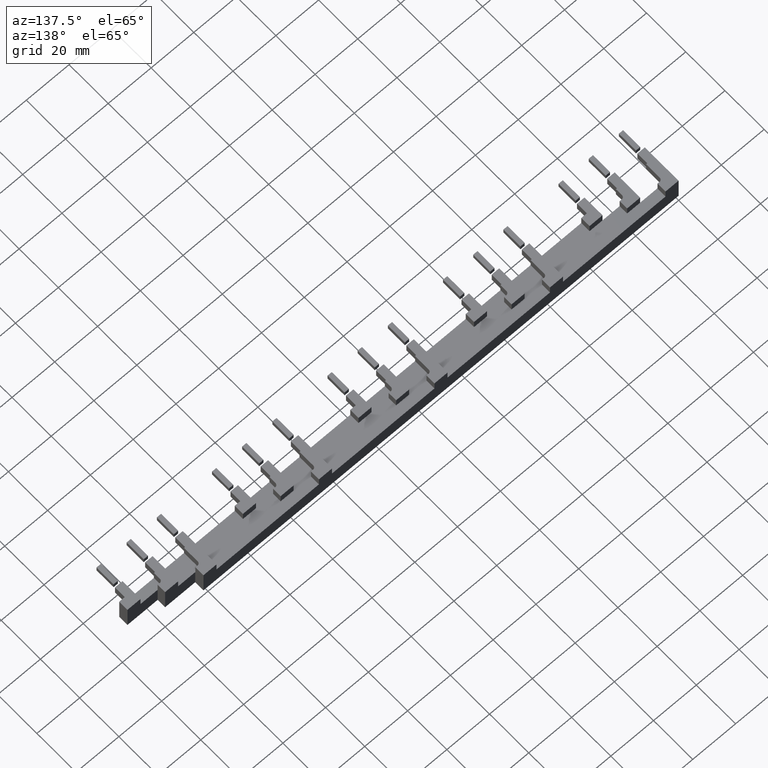
[diagram: clean part render]
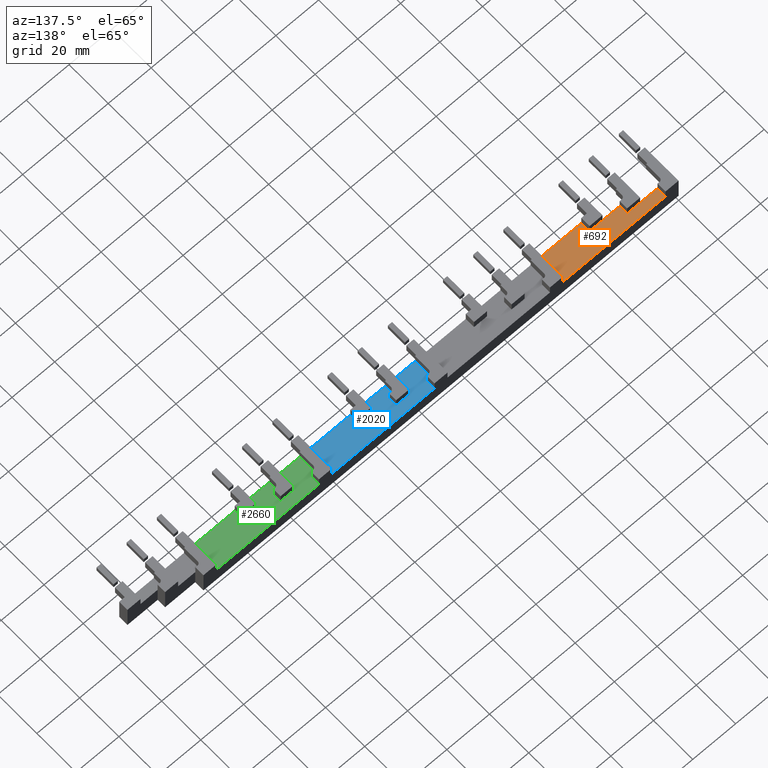
[diagram: same view with three faces highlighted in distinct colors, each labeled with its STEP entity id]
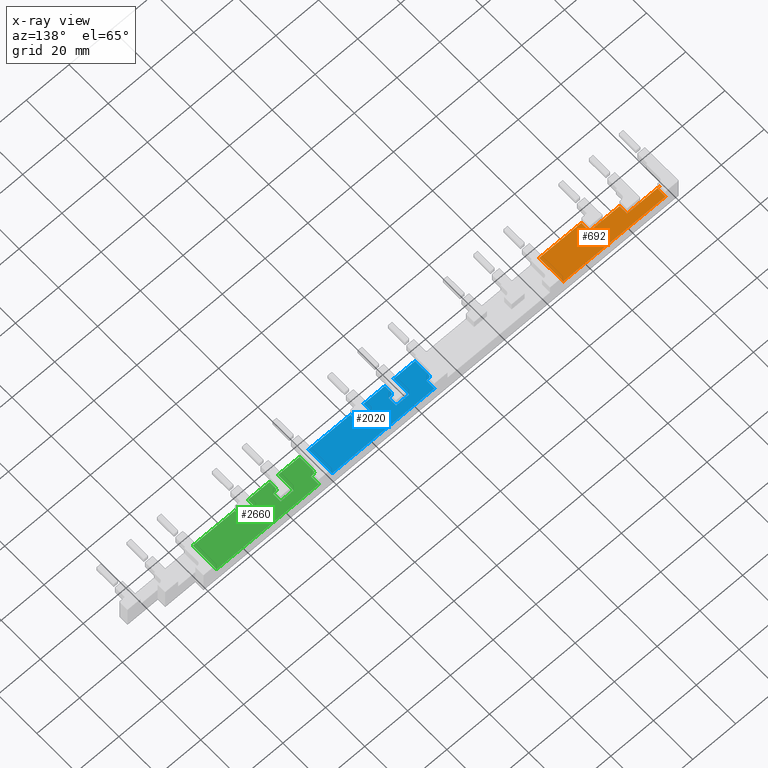
[diagram: x-ray of the same camera — body ghosted, the three highlighted faces saturated]
A machine part, auxiliary view with three faces highlighted in distinct colors.
The next image is the same camera in x-ray (body ghosted, the three faces saturated) — at least one of them is partly hidden behind the body in this view.
Their STEP definitions:

[orange] entity #692 — the highlighted planar face has unit normal (0, 0, 1).
#392=CARTESIAN_POINT('',(54.000000000000014,0.0,108.20000000000005));
#393=VERTEX_POINT('',#392);
#400=CARTESIAN_POINT('',(53.999999999999844,-12.200000000000049,108.20000000000005));
#401=VERTEX_POINT('',#400);
#402=CARTESIAN_POINT('',(53.999999999999844,-12.200000000000047,108.20000000000005));
#403=DIRECTION('',(0.0,1.0,0.0));
#404=VECTOR('',#403,12.200000000000047);
#405=LINE('',#402,#404);
#406=EDGE_CURVE('',#401,#393,#405,.T.);
#597=CARTESIAN_POINT('',(7.049999999999843,-2.100000000003889,108.20000000000005));
#598=DIRECTION('',(0.0,0.0,1.0));
#599=DIRECTION('',(1.0,0.0,0.0));
#600=AXIS2_PLACEMENT_3D('',#597,#598,#599);
#601=PLANE('',#600);
#602=ORIENTED_EDGE('',*,*,#406,.T.);
#603=CARTESIAN_POINT('',(6.099999999999669,-1.421085E-014,108.20000000000005));
#604=VERTEX_POINT('',#603);
#605=CARTESIAN_POINT('',(54.000000000000007,0.0,108.20000000000005));
#606=DIRECTION('',(-1.0,0.0,0.0));
#607=VECTOR('',#606,47.90000000000034);
#608=LINE('',#605,#607);
#609=EDGE_CURVE('',#393,#604,#608,.T.);
#610=ORIENTED_EDGE('',*,*,#609,.T.);
#611=CARTESIAN_POINT('',(6.099999999999684,-4.100000000008323,108.20000000000005));
#612=VERTEX_POINT('',#611);
#613=CARTESIAN_POINT('',(6.099999999999684,-4.100000000008323,108.20000000000005));
#614=DIRECTION('',(0.0,1.0,0.0));
#615=VECTOR('',#614,4.100000000008309);
#616=LINE('',#613,#615);
#617=EDGE_CURVE('',#612,#604,#616,.T.);
#618=ORIENTED_EDGE('',*,*,#617,.F.);
#619=CARTESIAN_POINT('',(4.999999999999888,-4.100000000008323,108.20000000000005));
#620=VERTEX_POINT('',#619);
#621=CARTESIAN_POINT('',(4.999999999999888,-4.100000000008323,108.20000000000005));
#622=DIRECTION('',(1.0,0.0,0.0));
#623=VECTOR('',#622,1.099999999999795);
#624=LINE('',#621,#623);
#625=EDGE_CURVE('',#620,#612,#624,.T.);
#626=ORIENTED_EDGE('',*,*,#625,.F.);
#627=CARTESIAN_POINT('',(4.564110105646948,-4.200000000007777,108.20000000000005));
#628=VERTEX_POINT('',#627);
#629=CARTESIAN_POINT('',(4.999999999999888,-5.100000000008322,108.20000000000005));
#630=DIRECTION('',(-4.480721E-017,4.480721E-017,-1.0));
#631=DIRECTION('',(-0.707106781186538,0.707106781186558,6.336697E-017));
#632=AXIS2_PLACEMENT_3D('',#629,#630,#631);
#633=CIRCLE('',#632,1.0);
#634=EDGE_CURVE('',#628,#620,#633,.T.);
#635=ORIENTED_EDGE('',*,*,#634,.F.);
#636=CARTESIAN_POINT('',(14.099999999999685,-4.200000000007777,108.20000000000005));
#637=VERTEX_POINT('',#636);
#638=CARTESIAN_POINT('',(4.564110105646948,-4.200000000007777,108.20000000000005));
#639=DIRECTION('',(1.0,0.0,0.0));
#640=VECTOR('',#639,9.535889894352737);
#641=LINE('',#638,#640);
#642=EDGE_CURVE('',#628,#637,#641,.T.);
#643=ORIENTED_EDGE('',*,*,#642,.T.);
#644=CARTESIAN_POINT('',(20.199999999999669,-4.200000000007521,108.20000000000005));
#645=VERTEX_POINT('',#644);
#646=CARTESIAN_POINT('',(20.199999999999669,-4.200000000007521,108.20000000000005));
#647=DIRECTION('',(-1.0,0.0,0.0));
#648=VECTOR('',#647,6.099999999999982);
#649=LINE('',#646,#648);
#650=EDGE_CURVE('',#645,#637,#649,.T.);
#651=ORIENTED_EDGE('',*,*,#650,.F.);
#652=CARTESIAN_POINT('',(20.199999999999211,-8.000000000007264,108.20000000000005));
#653=VERTEX_POINT('',#652);
#654=CARTESIAN_POINT('',(20.199999999999211,-8.000000000007264,108.20000000000005));
#655=DIRECTION('',(1.196704E-013,1.0,0.0));
#656=VECTOR('',#655,3.799999999999742);
#657=LINE('',#654,#656);
#658=EDGE_CURVE('',#653,#645,#657,.T.);
#659=ORIENTED_EDGE('',*,*,#658,.F.);
#660=CARTESIAN_POINT('',(28.199999999999594,-8.000000000007264,108.20000000000005));
#661=VERTEX_POINT('',#660);
#662=CARTESIAN_POINT('',(20.199999999999214,-8.000000000007264,108.20000000000005));
#663=DIRECTION('',(1.0,0.0,0.0));
#664=VECTOR('',#663,8.000000000000384);
#665=LINE('',#662,#664);
#666=EDGE_CURVE('',#653,#661,#665,.T.);
#667=ORIENTED_EDGE('',*,*,#666,.T.);
#668=CARTESIAN_POINT('',(34.299999999999621,-8.000000000007931,108.20000000000005));
#669=VERTEX_POINT('',#668);
#670=CARTESIAN_POINT('',(28.199999999999598,-8.000000000007931,108.20000000000005));
#671=DIRECTION('',(1.0,0.0,0.0));
#672=VECTOR('',#671,6.100000000000023);
#673=LINE('',#670,#672);
#674=EDGE_CURVE('',#661,#669,#673,.T.);
#675=ORIENTED_EDGE('',*,*,#674,.T.);
#676=CARTESIAN_POINT('',(34.299999999999621,-12.20000000000792,108.20000000000005));
#677=VERTEX_POINT('',#676);
#678=CARTESIAN_POINT('',(34.299999999999621,-8.000000000007931,108.20000000000005));
#679=DIRECTION('',(0.0,-1.0,0.0));
#680=VECTOR('',#679,4.19999999999999);
#681=LINE('',#678,#680);
#682=EDGE_CURVE('',#669,#677,#681,.T.);
#683=ORIENTED_EDGE('',*,*,#682,.T.);
#684=CARTESIAN_POINT('',(34.299999999999613,-12.200000000000049,108.20000000000003));
#685=DIRECTION('',(1.0,0.0,0.0));
#686=VECTOR('',#685,19.700000000000216);
#687=LINE('',#684,#686);
#688=EDGE_CURVE('',#677,#401,#687,.T.);
#689=ORIENTED_EDGE('',*,*,#688,.T.);
#690=EDGE_LOOP('',(#602,#610,#618,#626,#635,#643,#651,#659,#667,#675,#683,#689));
#691=FACE_OUTER_BOUND('',#690,.T.);
#692=ADVANCED_FACE('',(#691),#601,.T.);

[blue] entity #2020 — the highlighted planar face has unit normal (0, 0, 1).
#1124=CARTESIAN_POINT('',(114.0999999999997,-4.100000000008323,108.20000000000005));
#1125=VERTEX_POINT('',#1124);
#1132=CARTESIAN_POINT('',(114.0999999999997,-1.421085E-014,108.20000000000005));
#1133=VERTEX_POINT('',#1132);
#1134=CARTESIAN_POINT('',(114.0999999999997,-1.421085E-014,108.20000000000005));
#1135=DIRECTION('',(0.0,-1.0,0.0));
#1136=VECTOR('',#1135,4.100000000008309);
#1137=LINE('',#1134,#1136);
#1138=EDGE_CURVE('',#1133,#1125,#1137,.T.);
#1162=CARTESIAN_POINT('',(112.9999999999999,-4.100000000008323,108.20000000000005));
#1163=VERTEX_POINT('',#1162);
#1170=CARTESIAN_POINT('',(114.09999999999971,-4.100000000008323,108.20000000000005));
#1171=DIRECTION('',(-1.0,0.0,0.0));
#1172=VECTOR('',#1171,1.099999999999795);
#1173=LINE('',#1170,#1172);
#1174=EDGE_CURVE('',#1125,#1163,#1173,.T.);
#1194=CARTESIAN_POINT('',(111.9999999999999,-5.100000000008294,108.20000000000005));
#1195=VERTEX_POINT('',#1194);
#1202=CARTESIAN_POINT('',(112.9999999999999,-5.100000000008322,108.20000000000005));
#1203=DIRECTION('',(4.480721E-017,-4.480721E-017,1.0));
#1204=DIRECTION('',(-0.707106781186538,0.707106781186558,6.336697E-017));
#1205=AXIS2_PLACEMENT_3D('',#1202,#1203,#1204);
#1206=CIRCLE('',#1205,1.0);
#1207=EDGE_CURVE('',#1163,#1195,#1206,.T.);
#1226=CARTESIAN_POINT('',(111.9999999999999,-12.199999999999878,108.20000000000005));
#1227=VERTEX_POINT('',#1226);
#1234=CARTESIAN_POINT('',(111.9999999999999,-5.100000000008295,108.20000000000005));
#1235=DIRECTION('',(0.0,-1.0,0.0));
#1236=VECTOR('',#1235,7.099999999991583);
#1237=LINE('',#1234,#1236);
#1238=EDGE_CURVE('',#1195,#1227,#1237,.T.);
#1373=CARTESIAN_POINT('',(126.09999999999971,-9.000000000007278,108.20000000000005));
#1374=VERTEX_POINT('',#1373);
#1381=CARTESIAN_POINT('',(127.09999999999971,-8.000000000007278,108.20000000000005));
#1382=VERTEX_POINT('',#1381);
#1383=CARTESIAN_POINT('',(127.09999999999965,-9.000000000007221,108.20000000000005));
#1384=DIRECTION('',(4.480721E-017,-4.480721E-017,1.0));
#1385=DIRECTION('',(-0.707106781186548,0.707106781186548,6.336697E-017));
#1386=AXIS2_PLACEMENT_3D('',#1383,#1384,#1385);
#1387=CIRCLE('',#1386,0.999999999999943);
#1388=EDGE_CURVE('',#1382,#1374,#1387,.T.);
#1412=CARTESIAN_POINT('',(126.09999999999971,-12.200000000000104,108.20000000000005));
#1413=VERTEX_POINT('',#1412);
#1420=CARTESIAN_POINT('',(126.09999999999971,-9.000000000007278,108.20000000000002));
#1421=DIRECTION('',(0.0,-1.0,0.0));
#1422=VECTOR('',#1421,3.199999999992828);
#1423=LINE('',#1420,#1422);
#1424=EDGE_CURVE('',#1374,#1413,#1423,.T.);
#1514=CARTESIAN_POINT('',(122.09999999999971,-4.200000000007777,108.20000000000002));
#1515=VERTEX_POINT('',#1514);
#1522=CARTESIAN_POINT('',(122.09999999999971,-12.200000000000049,108.20000000000005));
#1523=VERTEX_POINT('',#1522);
#1524=CARTESIAN_POINT('',(122.09999999999971,-12.200000000000047,108.20000000000005));
#1525=DIRECTION('',(0.0,1.0,0.0));
#1526=VECTOR('',#1525,7.99999999999227);
#1527=LINE('',#1524,#1526);
#1528=EDGE_CURVE('',#1523,#1515,#1527,.T.);
#1553=CARTESIAN_POINT('',(128.19999999999968,-4.200000000007521,108.20000000000002));
#1554=VERTEX_POINT('',#1553);
#1561=CARTESIAN_POINT('',(122.09999999999971,-4.200000000007777,108.20000000000003));
#1562=DIRECTION('',(1.0,0.0,0.0));
#1563=VECTOR('',#1562,6.099999999999966);
#1564=LINE('',#1561,#1563);
#1565=EDGE_CURVE('',#1515,#1554,#1564,.T.);
#1584=CARTESIAN_POINT('',(128.19999999999922,-8.000000000007278,108.20000000000005));
#1585=VERTEX_POINT('',#1584);
#1592=CARTESIAN_POINT('',(128.19999999999968,-4.200000000007521,108.20000000000002));
#1593=DIRECTION('',(-1.196704E-013,-1.0,0.0));
#1594=VECTOR('',#1593,3.799999999999757);
#1595=LINE('',#1592,#1594);
#1596=EDGE_CURVE('',#1554,#1585,#1595,.T.);
#1614=CARTESIAN_POINT('',(128.19999999999922,-8.000000000007271,108.20000000000003));
#1615=DIRECTION('',(-1.0,0.0,0.0));
#1616=VECTOR('',#1615,1.099999999999511);
#1617=LINE('',#1614,#1616);
#1618=EDGE_CURVE('',#1585,#1382,#1617,.T.);
#1747=CARTESIAN_POINT('',(162.00000000000003,0.0,108.20000000000002));
#1748=VERTEX_POINT('',#1747);
#1755=CARTESIAN_POINT('',(161.99999999999986,-12.200000000000049,108.20000000000002));
#1756=VERTEX_POINT('',#1755);
#1757=CARTESIAN_POINT('',(161.99999999999989,-12.200000000000047,108.20000000000002));
#1758=DIRECTION('',(0.0,1.0,0.0));
#1759=VECTOR('',#1758,12.200000000000047);
#1760=LINE('',#1757,#1759);
#1761=EDGE_CURVE('',#1756,#1748,#1760,.T.);
#1952=CARTESIAN_POINT('',(7.049999999999843,-2.100000000003889,108.20000000000005));
#1953=DIRECTION('',(0.0,0.0,1.0));
#1954=DIRECTION('',(1.0,0.0,0.0));
#1955=AXIS2_PLACEMENT_3D('',#1952,#1953,#1954);
#1956=PLANE('',#1955);
#1957=ORIENTED_EDGE('',*,*,#1238,.T.);
#1958=CARTESIAN_POINT('',(111.9999999999999,-12.200000000000049,108.20000000000003));
#1959=DIRECTION('',(1.0,0.0,0.0));
#1960=VECTOR('',#1959,10.099999999999795);
#1961=LINE('',#1958,#1960);
#1962=EDGE_CURVE('',#1227,#1523,#1961,.T.);
#1963=ORIENTED_EDGE('',*,*,#1962,.T.);
#1964=ORIENTED_EDGE('',*,*,#1528,.T.);
#1965=ORIENTED_EDGE('',*,*,#1565,.T.);
#1966=ORIENTED_EDGE('',*,*,#1596,.T.);
#1967=ORIENTED_EDGE('',*,*,#1618,.T.);
#1968=ORIENTED_EDGE('',*,*,#1388,.T.);
#1969=ORIENTED_EDGE('',*,*,#1424,.T.);
#1970=CARTESIAN_POINT('',(136.19999999999962,-12.200000000000049,108.20000000000002));
#1971=VERTEX_POINT('',#1970);
#1972=CARTESIAN_POINT('',(126.0999999999997,-12.200000000000049,108.20000000000003));
#1973=DIRECTION('',(1.0,0.0,0.0));
#1974=VECTOR('',#1973,10.099999999999895);
#1975=LINE('',#1972,#1974);
#1976=EDGE_CURVE('',#1413,#1971,#1975,.T.);
#1977=ORIENTED_EDGE('',*,*,#1976,.T.);
#1978=CARTESIAN_POINT('',(136.19999999999962,-8.000000000007931,108.20000000000002));
#1979=VERTEX_POINT('',#1978);
#1980=CARTESIAN_POINT('',(136.19999999999962,-12.200000000000047,108.20000000000002));
#1981=DIRECTION('',(0.0,1.0,0.0));
#1982=VECTOR('',#1981,4.199999999992116);
#1983=LINE('',#1980,#1982);
#1984=EDGE_CURVE('',#1971,#1979,#1983,.T.);
#1985=ORIENTED_EDGE('',*,*,#1984,.T.);
#1986=CARTESIAN_POINT('',(142.29999999999964,-8.000000000007931,108.20000000000002));
#1987=VERTEX_POINT('',#1986);
#1988=CARTESIAN_POINT('',(136.19999999999962,-8.000000000007931,108.20000000000003));
#1989=DIRECTION('',(1.0,0.0,0.0));
#1990=VECTOR('',#1989,6.100000000000023);
#1991=LINE('',#1988,#1990);
#1992=EDGE_CURVE('',#1979,#1987,#1991,.T.);
#1993=ORIENTED_EDGE('',*,*,#1992,.T.);
#1994=CARTESIAN_POINT('',(142.29999999999964,-12.20000000000792,108.20000000000002));
#1995=VERTEX_POINT('',#1994);
#1996=CARTESIAN_POINT('',(142.29999999999964,-8.000000000007931,108.20000000000002));
#1997=DIRECTION('',(0.0,-1.0,0.0));
#1998=VECTOR('',#1997,4.19999999999999);
#1999=LINE('',#1996,#1998);
#2000=EDGE_CURVE('',#1987,#1995,#1999,.T.);
#2001=ORIENTED_EDGE('',*,*,#2000,.T.);
#2002=CARTESIAN_POINT('',(142.29999999999964,-12.200000000000049,108.20000000000002));
#2003=DIRECTION('',(1.0,0.0,0.0));
#2004=VECTOR('',#2003,19.700000000000216);
#2005=LINE('',#2002,#2004);
#2006=EDGE_CURVE('',#1995,#1756,#2005,.T.);
#2007=ORIENTED_EDGE('',*,*,#2006,.T.);
#2008=ORIENTED_EDGE('',*,*,#1761,.T.);
#2009=CARTESIAN_POINT('',(162.00000000000003,0.0,108.20000000000003));
#2010=DIRECTION('',(-1.0,0.0,0.0));
#2011=VECTOR('',#2010,47.900000000000318);
#2012=LINE('',#2009,#2011);
#2013=EDGE_CURVE('',#1748,#1133,#2012,.T.);
#2014=ORIENTED_EDGE('',*,*,#2013,.T.);
#2015=ORIENTED_EDGE('',*,*,#1138,.T.);
#2016=ORIENTED_EDGE('',*,*,#1174,.T.);
#2017=ORIENTED_EDGE('',*,*,#1207,.T.);
#2018=EDGE_LOOP('',(#1957,#1963,#1964,#1965,#1966,#1967,#1968,#1969,#1977,#1985,#1993,#2001,#2007,#2008,#2014,#2015,#2016,#2017));
#2019=FACE_OUTER_BOUND('',#2018,.T.);
#2020=ADVANCED_FACE('',(#2019),#1956,.T.);

[green] entity #2660 — the highlighted planar face has unit normal (0, 0, 1).
#1788=CARTESIAN_POINT('',(168.09999999999971,-4.100000000008323,108.20000000000002));
#1789=VERTEX_POINT('',#1788);
#1796=CARTESIAN_POINT('',(168.09999999999971,-1.421085E-014,108.20000000000002));
#1797=VERTEX_POINT('',#1796);
#1798=CARTESIAN_POINT('',(168.09999999999971,-1.421085E-014,108.20000000000002));
#1799=DIRECTION('',(0.0,-1.0,0.0));
#1800=VECTOR('',#1799,4.100000000008309);
#1801=LINE('',#1798,#1800);
#1802=EDGE_CURVE('',#1797,#1789,#1801,.T.);
#1826=CARTESIAN_POINT('',(166.99999999999991,-4.100000000008323,108.20000000000002));
#1827=VERTEX_POINT('',#1826);
#1834=CARTESIAN_POINT('',(168.09999999999971,-4.100000000008323,108.20000000000003));
#1835=DIRECTION('',(-1.0,0.0,0.0));
#1836=VECTOR('',#1835,1.099999999999795);
#1837=LINE('',#1834,#1836);
#1838=EDGE_CURVE('',#1789,#1827,#1837,.T.);
#1858=CARTESIAN_POINT('',(165.99999999999991,-5.100000000008294,108.20000000000002));
#1859=VERTEX_POINT('',#1858);
#1866=CARTESIAN_POINT('',(166.99999999999991,-5.100000000008322,108.20000000000002));
#1867=DIRECTION('',(4.480721E-017,-4.480721E-017,1.0));
#1868=DIRECTION('',(-0.707106781186538,0.707106781186558,6.336697E-017));
#1869=AXIS2_PLACEMENT_3D('',#1866,#1867,#1868);
#1870=CIRCLE('',#1869,1.0);
#1871=EDGE_CURVE('',#1827,#1859,#1870,.T.);
#1890=CARTESIAN_POINT('',(165.99999999999991,-12.199999999999878,108.20000000000002));
#1891=VERTEX_POINT('',#1890);
#1898=CARTESIAN_POINT('',(165.99999999999991,-5.100000000008295,108.20000000000002));
#1899=DIRECTION('',(0.0,-1.0,0.0));
#1900=VECTOR('',#1899,7.099999999991583);
#1901=LINE('',#1898,#1900);
#1902=EDGE_CURVE('',#1859,#1891,#1901,.T.);
#2037=CARTESIAN_POINT('',(180.09999999999974,-9.000000000007278,108.20000000000002));
#2038=VERTEX_POINT('',#2037);
#2045=CARTESIAN_POINT('',(181.09999999999971,-8.000000000007278,108.20000000000002));
#2046=VERTEX_POINT('',#2045);
#2047=CARTESIAN_POINT('',(181.09999999999968,-9.000000000007221,108.20000000000002));
#2048=DIRECTION('',(4.480721E-017,-4.480721E-017,1.0));
#2049=DIRECTION('',(-0.707106781186548,0.707106781186548,6.336697E-017));
#2050=AXIS2_PLACEMENT_3D('',#2047,#2048,#2049);
#2051=CIRCLE('',#2050,0.999999999999943);
#2052=EDGE_CURVE('',#2046,#2038,#2051,.T.);
#2076=CARTESIAN_POINT('',(180.09999999999974,-12.200000000000104,108.20000000000002));
#2077=VERTEX_POINT('',#2076);
#2084=CARTESIAN_POINT('',(180.09999999999974,-9.000000000007278,108.20000000000002));
#2085=DIRECTION('',(0.0,-1.0,0.0));
#2086=VECTOR('',#2085,3.199999999992828);
#2087=LINE('',#2084,#2086);
#2088=EDGE_CURVE('',#2038,#2077,#2087,.T.);
#2178=CARTESIAN_POINT('',(176.09999999999971,-4.200000000007777,108.20000000000002));
#2179=VERTEX_POINT('',#2178);
#2186=CARTESIAN_POINT('',(176.09999999999971,-12.200000000000049,108.20000000000002));
#2187=VERTEX_POINT('',#2186);
#2188=CARTESIAN_POINT('',(176.09999999999971,-12.200000000000047,108.20000000000002));
#2189=DIRECTION('',(0.0,1.0,0.0));
#2190=VECTOR('',#2189,7.99999999999227);
#2191=LINE('',#2188,#2190);
#2192=EDGE_CURVE('',#2187,#2179,#2191,.T.);
#2217=CARTESIAN_POINT('',(182.19999999999968,-4.200000000007536,108.20000000000002));
#2218=VERTEX_POINT('',#2217);
#2225=CARTESIAN_POINT('',(176.09999999999971,-4.20000000000777,108.20000000000003));
#2226=DIRECTION('',(1.0,0.0,0.0));
#2227=VECTOR('',#2226,6.099999999999966);
#2228=LINE('',#2225,#2227);
#2229=EDGE_CURVE('',#2179,#2218,#2228,.T.);
#2248=CARTESIAN_POINT('',(182.19999999999925,-8.000000000007264,108.20000000000002));
#2249=VERTEX_POINT('',#2248);
#2256=CARTESIAN_POINT('',(182.1999999999997,-4.200000000007536,108.20000000000002));
#2257=DIRECTION('',(-1.196704E-013,-1.0,0.0));
#2258=VECTOR('',#2257,3.799999999999728);
#2259=LINE('',#2256,#2258);
#2260=EDGE_CURVE('',#2218,#2249,#2259,.T.);
#2278=CARTESIAN_POINT('',(182.19999999999922,-8.000000000007267,108.20000000000003));
#2279=DIRECTION('',(-1.0,0.0,0.0));
#2280=VECTOR('',#2279,1.099999999999511);
#2281=LINE('',#2278,#2280);
#2282=EDGE_CURVE('',#2249,#2046,#2281,.T.);
#2411=CARTESIAN_POINT('',(216.00000000000006,0.0,108.2));
#2412=VERTEX_POINT('',#2411);
#2419=CARTESIAN_POINT('',(215.99999999999989,-12.200000000000049,108.20000000000002));
#2420=VERTEX_POINT('',#2419);
#2421=CARTESIAN_POINT('',(215.99999999999991,-12.200000000000047,108.20000000000002));
#2422=DIRECTION('',(0.0,1.0,0.0));
#2423=VECTOR('',#2422,12.200000000000047);
#2424=LINE('',#2421,#2423);
#2425=EDGE_CURVE('',#2420,#2412,#2424,.T.);
#2592=CARTESIAN_POINT('',(7.049999999999843,-2.100000000003889,108.20000000000005));
#2593=DIRECTION('',(0.0,0.0,1.0));
#2594=DIRECTION('',(1.0,0.0,0.0));
#2595=AXIS2_PLACEMENT_3D('',#2592,#2593,#2594);
#2596=PLANE('',#2595);
#2597=ORIENTED_EDGE('',*,*,#1902,.T.);
#2598=CARTESIAN_POINT('',(165.99999999999991,-12.200000000000049,108.20000000000002));
#2599=DIRECTION('',(1.0,0.0,0.0));
#2600=VECTOR('',#2599,10.099999999999795);
#2601=LINE('',#2598,#2600);
#2602=EDGE_CURVE('',#1891,#2187,#2601,.T.);
#2603=ORIENTED_EDGE('',*,*,#2602,.T.);
#2604=ORIENTED_EDGE('',*,*,#2192,.T.);
#2605=ORIENTED_EDGE('',*,*,#2229,.T.);
#2606=ORIENTED_EDGE('',*,*,#2260,.T.);
#2607=ORIENTED_EDGE('',*,*,#2282,.T.);
#2608=ORIENTED_EDGE('',*,*,#2052,.T.);
#2609=ORIENTED_EDGE('',*,*,#2088,.T.);
#2610=CARTESIAN_POINT('',(190.19999999999965,-12.200000000000049,108.20000000000002));
#2611=VERTEX_POINT('',#2610);
#2612=CARTESIAN_POINT('',(180.09999999999971,-12.200000000000049,108.20000000000002));
#2613=DIRECTION('',(1.0,0.0,0.0));
#2614=VECTOR('',#2613,10.099999999999909);
#2615=LINE('',#2612,#2614);
#2616=EDGE_CURVE('',#2077,#2611,#2615,.T.);
#2617=ORIENTED_EDGE('',*,*,#2616,.T.);
#2618=CARTESIAN_POINT('',(190.19999999999965,-8.000000000007931,108.20000000000002));
#2619=VERTEX_POINT('',#2618);
#2620=CARTESIAN_POINT('',(190.19999999999965,-12.200000000000047,108.20000000000002));
#2621=DIRECTION('',(0.0,1.0,0.0));
#2622=VECTOR('',#2621,4.199999999992116);
#2623=LINE('',#2620,#2622);
#2624=EDGE_CURVE('',#2611,#2619,#2623,.T.);
#2625=ORIENTED_EDGE('',*,*,#2624,.T.);
#2626=CARTESIAN_POINT('',(196.29999999999964,-8.000000000007931,108.20000000000002));
#2627=VERTEX_POINT('',#2626);
#2628=CARTESIAN_POINT('',(190.19999999999965,-8.000000000007931,108.20000000000003));
#2629=DIRECTION('',(1.0,0.0,0.0));
#2630=VECTOR('',#2629,6.100000000000023);
#2631=LINE('',#2628,#2630);
#2632=EDGE_CURVE('',#2619,#2627,#2631,.T.);
#2633=ORIENTED_EDGE('',*,*,#2632,.T.);
#2634=CARTESIAN_POINT('',(196.29999999999964,-12.20000000000792,108.20000000000002));
#2635=VERTEX_POINT('',#2634);
#2636=CARTESIAN_POINT('',(196.29999999999964,-8.000000000007931,108.20000000000002));
#2637=DIRECTION('',(0.0,-1.0,0.0));
#2638=VECTOR('',#2637,4.19999999999999);
#2639=LINE('',#2636,#2638);
#2640=EDGE_CURVE('',#2627,#2635,#2639,.T.);
#2641=ORIENTED_EDGE('',*,*,#2640,.T.);
#2642=CARTESIAN_POINT('',(196.29999999999964,-12.200000000000049,108.20000000000002));
#2643=DIRECTION('',(1.0,0.0,0.0));
#2644=VECTOR('',#2643,19.700000000000216);
#2645=LINE('',#2642,#2644);
#2646=EDGE_CURVE('',#2635,#2420,#2645,.T.);
#2647=ORIENTED_EDGE('',*,*,#2646,.T.);
#2648=ORIENTED_EDGE('',*,*,#2425,.T.);
#2649=CARTESIAN_POINT('',(216.00000000000006,0.0,108.20000000000002));
#2650=DIRECTION('',(-1.0,0.0,0.0));
#2651=VECTOR('',#2650,47.900000000000347);
#2652=LINE('',#2649,#2651);
#2653=EDGE_CURVE('',#2412,#1797,#2652,.T.);
#2654=ORIENTED_EDGE('',*,*,#2653,.T.);
#2655=ORIENTED_EDGE('',*,*,#1802,.T.);
#2656=ORIENTED_EDGE('',*,*,#1838,.T.);
#2657=ORIENTED_EDGE('',*,*,#1871,.T.);
#2658=EDGE_LOOP('',(#2597,#2603,#2604,#2605,#2606,#2607,#2608,#2609,#2617,#2625,#2633,#2641,#2647,#2648,#2654,#2655,#2656,#2657));
#2659=FACE_OUTER_BOUND('',#2658,.T.);
#2660=ADVANCED_FACE('',(#2659),#2596,.T.);